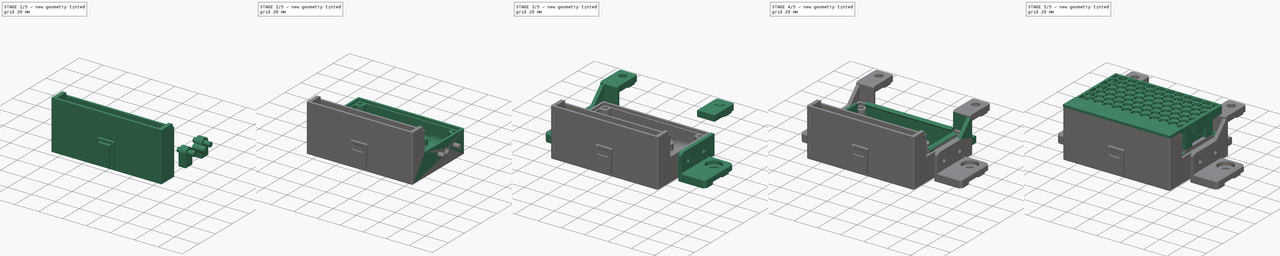
[diagram: build sequence overview — one tinted view per stage of 5, left to right]
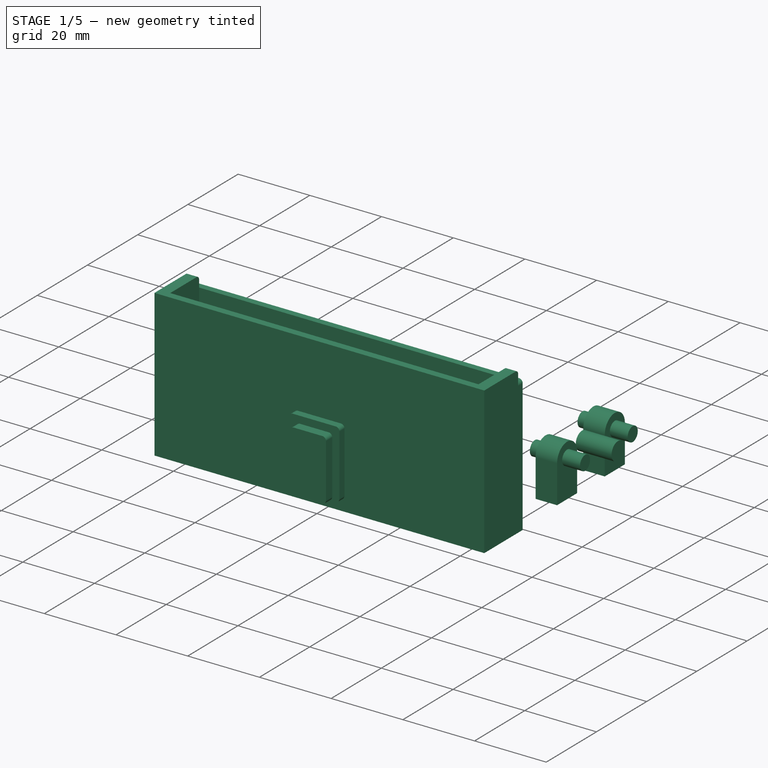
[diagram: stage 1 of 5 — iso view after this stage's code; geometry added in this stage tinted green]
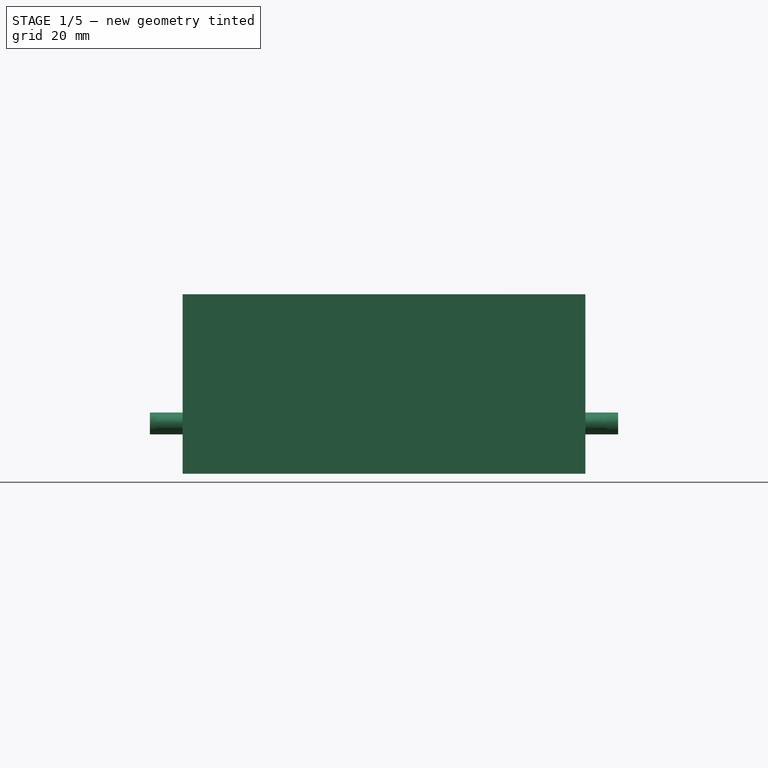
[diagram: stage 1 of 5 — front view after this stage's code; geometry added in this stage tinted green]
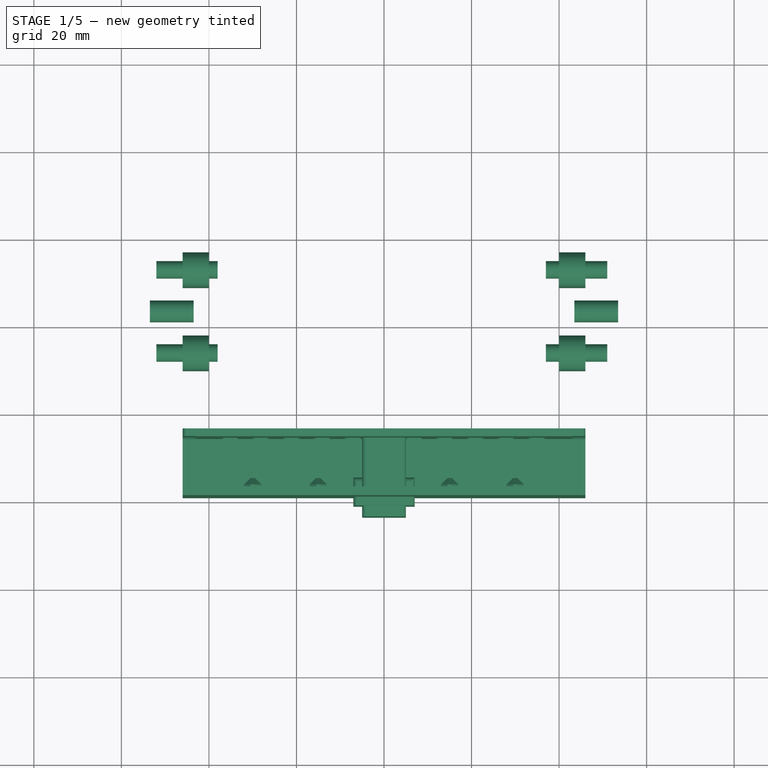
[diagram: stage 1 of 5 — top view after this stage's code; geometry added in this stage tinted green]
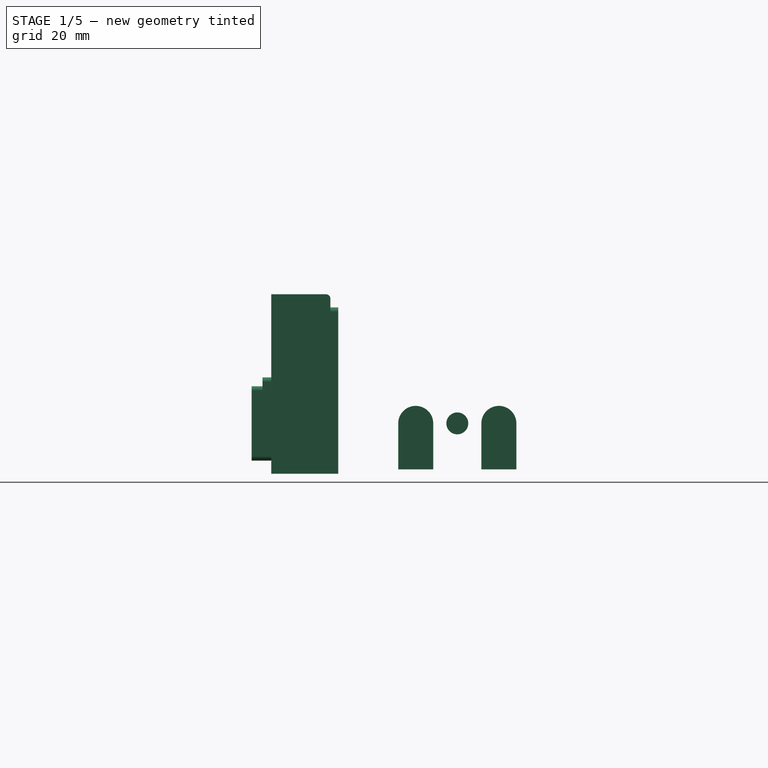
[diagram: stage 1 of 5 — right view after this stage's code; geometry added in this stage tinted green]
FCSTD DOCUMENT  (FreeCAD 0.19R24291 (Git))
Label: air-filter
License: Other
LicenseURL: GPL3
objects: Part::Box×64, Part::Feature×55, Part::Cylinder×40, Part::MultiFuse×39, Part::Chamfer×22, Part::Cut×21, Part::Fillet×18, Part::Refine×4, Sketcher::SketchObject×3, PartDesign::Body×2, Part::Mirroring×2, PartDesign::AdditiveLoft×1, PartDesign::Pad×1, Part::MultiCommon×1
note: 275 computed .brp shape members not serialized (recipe doc carries the construction recipe); baked Part::Feature solids carry a one-line shape summary decoded from their .brp

FEATURE [Part::Box] Box026  label="Cube026"
  AttacherType = Attacher::AttachEngine3D
  Height = 38
  Length = 92
  Placement = pos=(-46,-25.5,0) rot=(0,0,1;0rad)
  Width = 1.8
FEATURE [Part::Feature] Fillet005001
  shape: bbox 4 x 10 x 15 mm, 10 faces (baked)
FEATURE [Part::Feature] Fillet005002
  Placement = pos=(-7,0,0) rot=(0,0,1;0rad)
  shape: bbox 4 x 10 x 15 mm, 10 faces (baked)
FEATURE [Part::Feature] Fillet005003
  Placement = pos=(-14,0,0) rot=(0,0,1;0rad)
  shape: bbox 4 x 10 x 15 mm, 10 faces (baked)
FEATURE [Part::Feature] Fillet005004
  Placement = pos=(-21,0,0) rot=(0,0,1;0rad)
  shape: bbox 4 x 10 x 15 mm, 10 faces (baked)
FEATURE [Part::Feature] Fillet005005
  Placement = pos=(-28,0,0) rot=(0,0,1;0rad)
  shape: bbox 4 x 10 x 15 mm, 10 faces (baked)
FEATURE [Part::Feature] Fillet005006
  Placement = pos=(-35,0,0) rot=(0,0,1;0rad)
  shape: bbox 4 x 10 x 15 mm, 10 faces (baked)
FEATURE [Part::Feature] Fillet005007
  Placement = pos=(7,0,0) rot=(0,0,1;0rad)
  shape: bbox 4 x 10 x 15 mm, 10 faces (baked)
FEATURE [Part::Feature] Fillet005008
  Placement = pos=(14,0,0) rot=(0,0,1;0rad)
  shape: bbox 4 x 10 x 15 mm, 10 faces (baked)
FEATURE [Part::Feature] Fillet005009
  Placement = pos=(21,0,0) rot=(0,0,1;0rad)
  shape: bbox 4 x 10 x 15 mm, 10 faces (baked)
FEATURE [Part::Feature] Fillet005010
  Placement = pos=(28,0,0) rot=(0,0,1;0rad)
  shape: bbox 4 x 10 x 15 mm, 10 faces (baked)
FEATURE [Part::Feature] Fillet005011
  Placement = pos=(35,0,0) rot=(0,0,1;0rad)
  shape: bbox 4 x 10 x 15 mm, 10 faces (baked)
FEATURE [Part::MultiFuse] Fusion001019
  Placement = pos=(-1.5,0,0) rot=(0,0,1;0rad)
  Shapes = -> [Fillet005011,Fillet005010,Fillet005009,Fillet005007,Fillet005008,Fillet005006,Fillet005005,Fillet005004,Fillet005003,Fillet005002,Fillet005001]
FEATURE [Part::Box] Box027  label="Cube027"
  AttacherType = Attacher::AttachEngine3D
  Height = 41
  Length = 3
  Placement = pos=(-46,-39,0) rot=(0,0,1;0rad)
  Width = 13.5
FEATURE [Part::Box] Box028  label="Cube028"
  AttacherType = Attacher::AttachEngine3D
  Height = 3
  Length = 92
  Placement = pos=(-46,-39,0) rot=(0,0,1;0rad)
  Width = 14
FEATURE [Part::Cut] Cut007
  Base = -> Box026
  Tool = -> Fusion001019
FEATURE [Part::Box] Box029  label="Cube029"
  AttacherType = Attacher::AttachEngine3D
  Height = 41
  Length = 3
  Placement = pos=(43,-39,0) rot=(0,0,1;0rad)
  Width = 13.5
FEATURE [Part::Box] Box030  label="Cube030"
  AttacherType = Attacher::AttachEngine3D
  Height = 41
  Length = 92
  Placement = pos=(-46,-39,0) rot=(0,0,1;0rad)
  Width = 2
FEATURE [Part::MultiFuse] Fusion001020
  Shapes = -> [Box027,Box030,Box029]
FEATURE [Part::Fillet] Fillet005012
  Base = -> Fusion001020
  Edges = 2 edges r=1: [Edge18,Edge40]
FEATURE [Part::Fillet] Fillet005013
  Base = -> Cut007
  Edges = 2 edges r=1: [Edge2,Edge97]
FEATURE [Part::MultiFuse] Fusion001021004009015005
  Shapes = -> [Chamfer010004,Chamfer010001,Chamfer010002,Chamfer010003]
FEATURE [Part::Box] Box049  label="Cube047"
  AttacherType = Attacher::AttachEngine3D
  Height = 17
  Length = 10
  Placement = pos=(-5,-43.5,3) rot=(0,0,1;0rad)
  Width = 18
FEATURE [Part::Fillet] Fillet005015018
  Base = -> Box049
  Edges = 4 edges r=1: [Edge2,Edge4,Edge6,Edge8]
FEATURE [Part::Box] Box050  label="Cube048"
  AttacherType = Attacher::AttachEngine3D
  Height = 9.7
  Length = 14
  Placement = pos=(-7,-48,0) rot=(0,0,1;0rad)
  Width = 2
FEATURE [Part::Box] Box051  label="Cube049"
  AttacherType = Attacher::AttachEngine3D
  Height = 19
  Length = 14
  Placement = pos=(-7,-52.2,0) rot=(0,0,1;0rad)
  Width = 2
FEATURE [Part::Cylinder] Cylinder020
  Angle = 360
  AttacherType = Attacher::AttachEngine3D
  Height = 5
  Placement = pos=(0,-46.9,5) rot=(1,0,0;1.5708rad)
  Radius = 4.7
FEATURE [Part::Box] Box052  label="Cube050"
  AttacherType = Attacher::AttachEngine3D
  Height = 1.5
  Length = 12
  Placement = pos=(-6,-48,0) rot=(0,0,1;0rad)
  Width = 10.5
FEATURE [Part::Fillet] Fillet005015019
  Base = -> Box052
  Edges = 2 edges r=1: [Edge3,Edge7]
FEATURE [Part::Fillet] Fillet005015021
  Base = -> Box051
  Edges = 4 edges r=1: [Edge2,Edge4,Edge6,Edge8]
  Placement = pos=(0,-0.3,0) rot=(0,0,1;0rad)
FEATURE [Part::Fillet] Fillet005015022
  Base = -> Box050
  Edges = 5 edges r=1: [Edge2,Edge4,Edge6,Edge8,Edge12]
FEATURE [Part::Box] Box053  label="Cube051"
  AttacherType = Attacher::AttachEngine3D
  Height = 5
  Length = 10
  Placement = pos=(-5,-62,12) rot=(0,0,1;0rad)
  Width = 10
FEATURE [Part::Fillet] Fillet005015023
  Base = -> Box053
  Edges = 4 edges r=1: [Edge2,Edge4,Edge6,Edge8]
FEATURE [Part::Chamfer] Chamfer010009
  Base = -> Fillet005015023
  Edges = 8 edges r=0.5: [Edge3,Edge13,Edge15,Edge16,Edge17,Edge18,Edge19,Edge20]
FEATURE [Part::Cylinder] Cylinder024
  Angle = 360
  AttacherType = Attacher::AttachEngine3D
  Height = 14
  Placement = pos=(-52,13,11.5) rot=(0,1,0;1.5708rad)
  Radius = 2
FEATURE [Part::Cylinder] Cylinder025
  Angle = 360
  AttacherType = Attacher::AttachEngine3D
  Height = 14
  Placement = pos=(-52,-6,11.5) rot=(0,1,0;1.5708rad)
  Radius = 2
FEATURE [Part::Cylinder] Cylinder026
  Angle = 360
  AttacherType = Attacher::AttachEngine3D
  Height = 14
  Placement = pos=(37,-6,11.5) rot=(0,1,0;1.5708rad)
  Radius = 2
FEATURE [Part::Cylinder] Cylinder027
  Angle = 360
  AttacherType = Attacher::AttachEngine3D
  Height = 14
  Placement = pos=(37,13,11.5) rot=(0,1,0;1.5708rad)
  Radius = 2
FEATURE [Part::Cylinder] Cylinder030
  Angle = 360
  AttacherType = Attacher::AttachEngine3D
  Height = 10
  Placement = pos=(-53.5,3.5,11.5) rot=(0,1,0;1.5708rad)
  Radius = 2.5
FEATURE [Part::Cylinder] Cylinder038
  Angle = 360
  AttacherType = Attacher::AttachEngine3D
  Height = 10
  Placement = pos=(43.5,3.5,11.5) rot=(0,1,0;1.5708rad)
  Radius = 2.5
FEATURE [Part::MultiFuse] Fusion001021004009015013006
  Shapes = -> [Cylinder030,Cylinder038]
FEATURE [Part::Cylinder] Cylinder039
  Angle = 360
  AttacherType = Attacher::AttachEngine3D
  Height = 6
  Placement = pos=(-46,13,11.5) rot=(0,1,0;1.5708rad)
  Radius = 4
FEATURE [Part::Cylinder] Cylinder040
  Angle = 360
  AttacherType = Attacher::AttachEngine3D
  Height = 6
  Placement = pos=(-46,-6,11.5) rot=(0,1,0;1.5708rad)
  Radius = 4
FEATURE [Part::Cylinder] Cylinder041
  Angle = 360
  AttacherType = Attacher::AttachEngine3D
  Height = 6
  Placement = pos=(40,-6,11.5) rot=(0,1,0;1.5708rad)
  Radius = 4
FEATURE [Part::Cylinder] Cylinder042
  Angle = 360
  AttacherType = Attacher::AttachEngine3D
  Height = 6
  Placement = pos=(40,13,11.5) rot=(0,1,0;1.5708rad)
  Radius = 4
FEATURE [Part::Box] Box064  label="Cube062"
  AttacherType = Attacher::AttachEngine3D
  Height = 10.5
  Length = 6
  Placement = pos=(-46,-10,1) rot=(0,0,1;0rad)
  Width = 8
FEATURE [Part::Box] Box065  label="Cube063"
  AttacherType = Attacher::AttachEngine3D
  Height = 10.5
  Length = 6
  Placement = pos=(-46,9,1) rot=(0,0,1;0rad)
  Width = 8
FEATURE [Part::Box] Box066  label="Cube064"
  AttacherType = Attacher::AttachEngine3D
  Height = 10.5
  Length = 6
  Placement = pos=(40,9,1) rot=(0,0,1;0rad)
  Width = 8
FEATURE [Part::Box] Box067  label="Cube065"
  AttacherType = Attacher::AttachEngine3D
  Height = 10.5
  Length = 6
  Placement = pos=(40,-10,1) rot=(0,0,1;0rad)
  Width = 8
FEATURE [Part::MultiFuse] Fusion001021004009015013007
  Shapes = -> [Box067,Box066,Box065,Box064,Cylinder042,Cylinder041,Cylinder040,Cylinder039]
FEATURE [Part::MultiFuse] Fusion001021004009015013009
  Shapes = -> [Cylinder027,Cylinder024,Cylinder025,Cylinder026]
FEATURE [Part::Refine] Cut019003010005001
  Source = -> Cut019003010005
FEATURE [Part::Feature] Cut019003010005001001
  shape: bbox 92 x 64.5 x 41 mm, 242 faces (baked)
FEATURE [Part::MultiFuse] Fusion001021004009015013010
  Shapes = -> [Fillet005015019,Fillet005015022,Cylinder020,Fillet005015021]
FEATURE [Part::Cut] Cut019003010005001002
  Base = -> Fusion001021004009015013010
  Placement = pos=(0,11.5,3) rot=(0,0,1;0rad)
  Tool = -> Chamfer010009
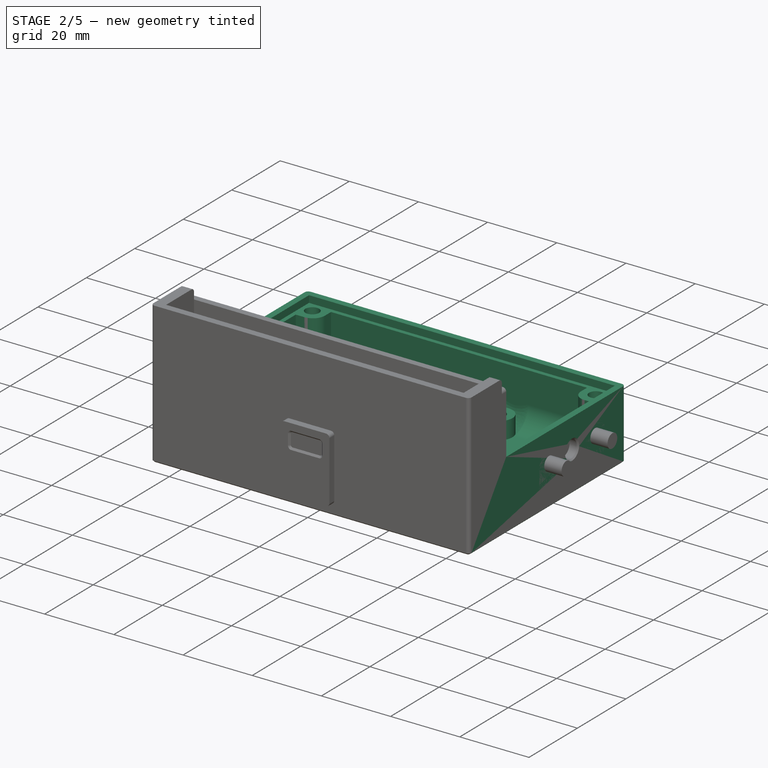
[diagram: stage 2 of 5 — iso view after this stage's code; geometry added in this stage tinted green]
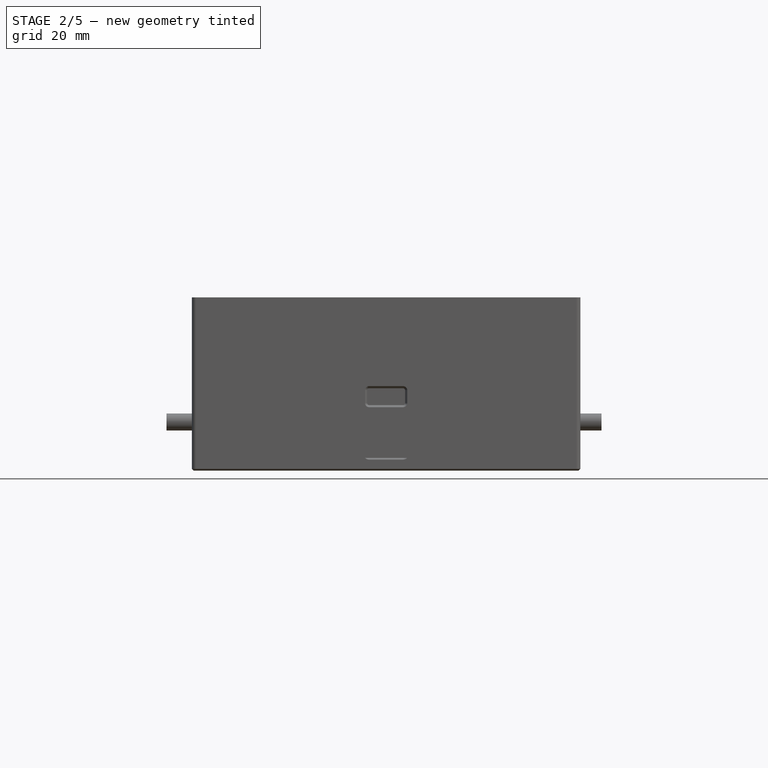
[diagram: stage 2 of 5 — front view after this stage's code; geometry added in this stage tinted green]
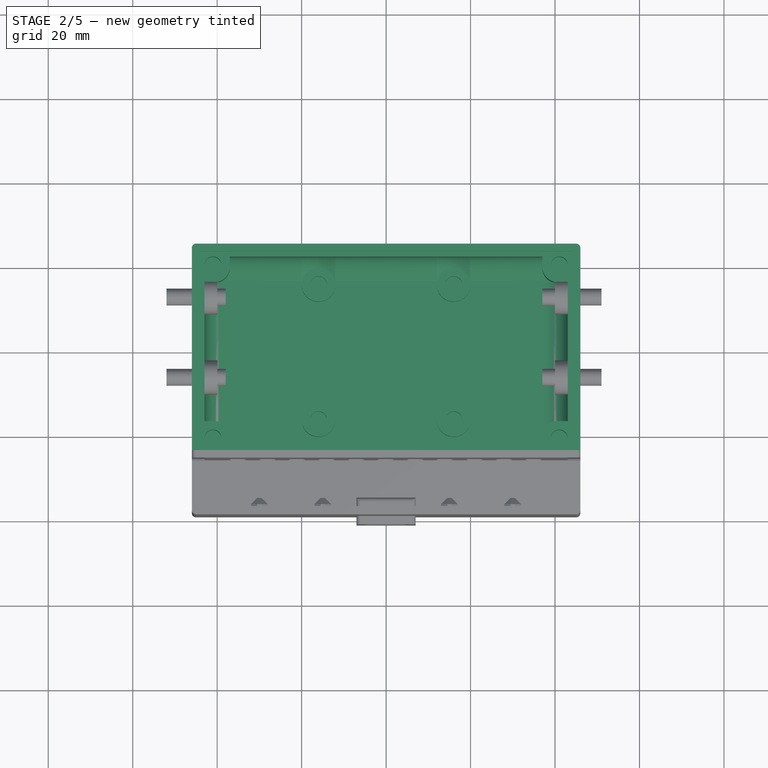
[diagram: stage 2 of 5 — top view after this stage's code; geometry added in this stage tinted green]
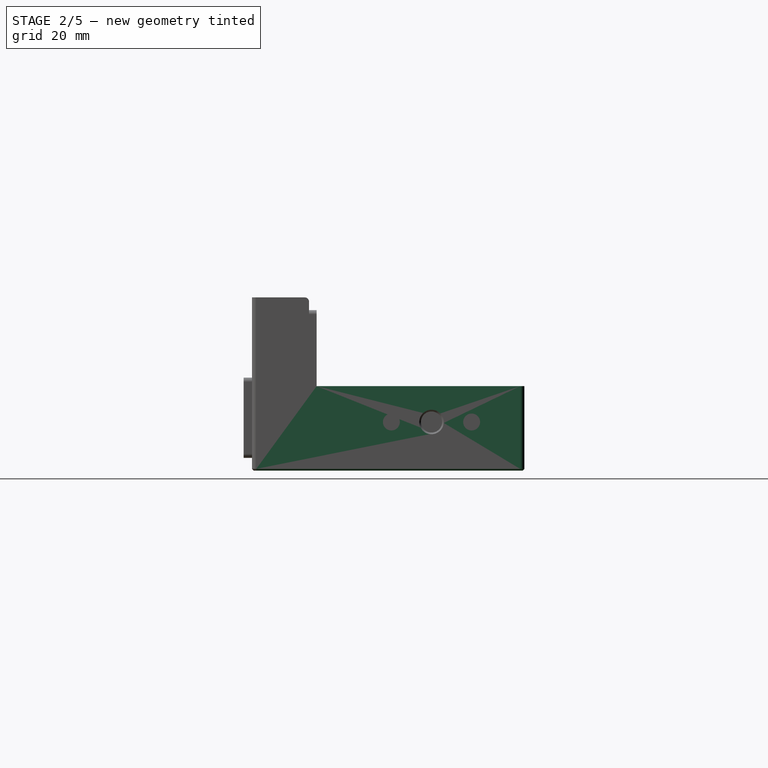
[diagram: stage 2 of 5 — right view after this stage's code; geometry added in this stage tinted green]
FEATURE [Part::Box] Box014  label="Cube014"
  AttacherType = Attacher::AttachEngine3D
  Height = 3
  Length = 92
  Placement = pos=(-46,-25.5,0) rot=(0,0,1;0rad)
  Width = 51
FEATURE [Part::Cylinder] Cylinder008
  Angle = 360
  AttacherType = Attacher::AttachEngine3D
  Height = 8
  Placement = pos=(-16,16,0) rot=(0,0,1;0rad)
  Radius = 4
FEATURE [Part::Cylinder] Cylinder009
  Angle = 360
  AttacherType = Attacher::AttachEngine3D
  Height = 8
  Placement = pos=(16,16,0) rot=(0,0,1;0rad)
  Radius = 4
FEATURE [Part::Cylinder] Cylinder010
  Angle = 360
  AttacherType = Attacher::AttachEngine3D
  Height = 8
  Placement = pos=(-16,-16,0) rot=(0,0,1;0rad)
  Radius = 4
FEATURE [Part::Cylinder] Cylinder011
  Angle = 360
  AttacherType = Attacher::AttachEngine3D
  Height = 8
  Placement = pos=(16,-16,0) rot=(0,0,1;0rad)
  Radius = 4
FEATURE [Part::Cylinder] Cylinder012
  Angle = 360
  AttacherType = Attacher::AttachEngine3D
  Height = 8
  Placement = pos=(16,-16,0) rot=(0,0,1;0rad)
  Radius = 2
FEATURE [Part::Cylinder] Cylinder013
  Angle = 360
  AttacherType = Attacher::AttachEngine3D
  Height = 8
  Placement = pos=(-16,-16,0) rot=(0,0,1;0rad)
  Radius = 2
FEATURE [Part::Cylinder] Cylinder014
  Angle = 360
  AttacherType = Attacher::AttachEngine3D
  Height = 8
  Placement = pos=(16,16,0) rot=(0,0,1;0rad)
  Radius = 2
FEATURE [Part::Cylinder] Cylinder015
  Angle = 360
  AttacherType = Attacher::AttachEngine3D
  Height = 8
  Placement = pos=(-16,16,0) rot=(0,0,1;0rad)
  Radius = 2
FEATURE [Part::MultiFuse] Fusion001011
  Shapes = -> [Cylinder015,Cylinder012,Cylinder013,Cylinder014]
FEATURE [Part::MultiFuse] Fusion001012
  Shapes = -> [Cylinder011,Cylinder008,Cylinder009,Cylinder010]
FEATURE [Part::Cut] Cut005
  Base = -> Fusion001012
  Tool = -> Fusion001011
FEATURE [Part::MultiFuse] Fusion001013
  Shapes = -> [Cut005,Box014]
FEATURE [Part::Box] Box015  label="Cube015"
  AttacherType = Attacher::AttachEngine3D
  Height = 18
  Length = 3
  Placement = pos=(-46,-25.5,0) rot=(0,0,1;0rad)
  Width = 51
FEATURE [Part::Box] Box016  label="Cube016"
  AttacherType = Attacher::AttachEngine3D
  Height = 18
  Length = 3
  Placement = pos=(43,-25.5,0) rot=(0,0,1;0rad)
  Width = 51
FEATURE [Part::Box] Box017  label="Cube017"
  AttacherType = Attacher::AttachEngine3D
  Height = 18
  Length = 92
  Placement = pos=(-46,22.5,0) rot=(0,0,1;0rad)
  Width = 3
FEATURE [Part::Box] Box018  label="Cube018"
  AttacherType = Attacher::AttachEngine3D
  Height = 20
  Length = 1.8
  Placement = pos=(-46,-25.5,0) rot=(0,0,1;0rad)
  Width = 51
FEATURE [Part::Box] Box019  label="Cube019"
  AttacherType = Attacher::AttachEngine3D
  Height = 20
  Length = 1.8
  Placement = pos=(44.2,-25.5,0) rot=(0,0,1;0rad)
  Width = 51
FEATURE [Part::Box] Box020  label="Cube020"
  AttacherType = Attacher::AttachEngine3D
  Height = 20
  Length = 92
  Placement = pos=(-46,23.7,0) rot=(0,0,1;0rad)
  Width = 1.8
FEATURE [Part::MultiFuse] Fusion001014
  Shapes = -> [Box020,Box019,Box018,Box017,Box016,Box015,Fusion001013]
FEATURE [Part::Box] Box021  label="Cube021"
  AttacherType = Attacher::AttachEngine3D
  Height = 18
  Length = 9
  Placement = pos=(-46,16.5,0) rot=(0,0,1;0rad)
  Width = 9
FEATURE [Part::Box] Box022  label="Cube022"
  AttacherType = Attacher::AttachEngine3D
  Height = 18
  Length = 9
  Placement = pos=(37,16.5,0) rot=(0,0,1;0rad)
  Width = 9
FEATURE [Part::Box] Box023  label="Cube023"
  AttacherType = Attacher::AttachEngine3D
  Height = 18
  Length = 9
  Placement = pos=(-46,-25.5,0) rot=(0,0,1;0rad)
  Width = 9
FEATURE [Part::Box] Box024  label="Cube024"
  AttacherType = Attacher::AttachEngine3D
  Height = 18
  Length = 9
  Placement = pos=(37,-25.5,0) rot=(0,0,1;0rad)
  Width = 9
FEATURE [Part::MultiFuse] Fusion001015
  Shapes = -> [Box024,Box023,Box022,Box021]
FEATURE [Part::Cylinder] Cylinder016
  Angle = 360
  AttacherType = Attacher::AttachEngine3D
  Height = 10
  Placement = pos=(-41,-20.5,10) rot=(0,0,1;0rad)
  Radius = 2
FEATURE [Part::Cylinder] Cylinder017
  Angle = 360
  AttacherType = Attacher::AttachEngine3D
  Height = 10
  Placement = pos=(-41,20.5,10) rot=(0,0,1;0rad)
  Radius = 2
FEATURE [Part::Cylinder] Cylinder018
  Angle = 360
  AttacherType = Attacher::AttachEngine3D
  Height = 10
  Placement = pos=(41,20.5,10) rot=(0,0,1;0rad)
  Radius = 2
FEATURE [Part::Cylinder] Cylinder019
  Angle = 360
  AttacherType = Attacher::AttachEngine3D
  Height = 10
  Placement = pos=(41,-20.5,10) rot=(0,0,1;0rad)
  Radius = 2
FEATURE [Part::MultiFuse] Fusion001016
  Shapes = -> [Cylinder019,Cylinder018,Cylinder017,Cylinder016]
FEATURE [Part::Fillet] Fillet002
  Base = -> Fusion001015
  Edges = 4 edges r=3.5: [Edge3,Edge19,Edge25,Edge41]
FEATURE [Part::Fillet] Fillet003
  Base = -> Fusion001014
  Edges = 3 edges r=6: [Edge110,Edge111,Edge112]
FEATURE [Part::MultiFuse] Fusion001017
  Shapes = -> [Fillet003,Fillet002]
FEATURE [Part::Cut] Cut006
  Base = -> Fusion001017
  Tool = -> Fusion001016
FEATURE [Part::MultiFuse] Fusion001021
  Shapes = -> [Fillet005013,Fillet005012,Box028,Cut006]
FEATURE [Part::Refine] Fusion001021001
  Source = -> Fusion001021
FEATURE [Part::Fillet] Fillet005014
  Base = -> Fusion001021001
  Edges = 4 edges r=1: [Edge293,Edge296,Edge329,Edge417]
FEATURE [Part::Chamfer] Chamfer003
  Base = -> Fillet005014
  Edges = 8 edges r=0.4: [Edge8,Edge19,Edge23,Edge24,Edge25,Edge26,Edge27,Edge28]
FEATURE [Part::MultiFuse] Fusion001021004009015006
  Shapes = -> [Fusion001021004009015005,Chamfer003]
FEATURE [Part::Cut] Cut017
  Base = -> Fusion001021004009015006
  Tool = -> Fillet005015018
FEATURE [Part::Chamfer] Chamfer010008
  Base = -> Cut017
  Edges = 8 edges r=0.4: [Edge63,Edge64,Edge65,Edge66,Edge67,Edge68,Edge69,Edge70]
FEATURE [Part::Cut] Cut019003010004
  Base = -> Chamfer010008
  Tool = -> Fusion001021004009015013006
FEATURE [Part::Chamfer] Chamfer010015009
  Base = -> Cut019003010004
  Edges = 2 edges r=0.4: [Edge68,Edge78]
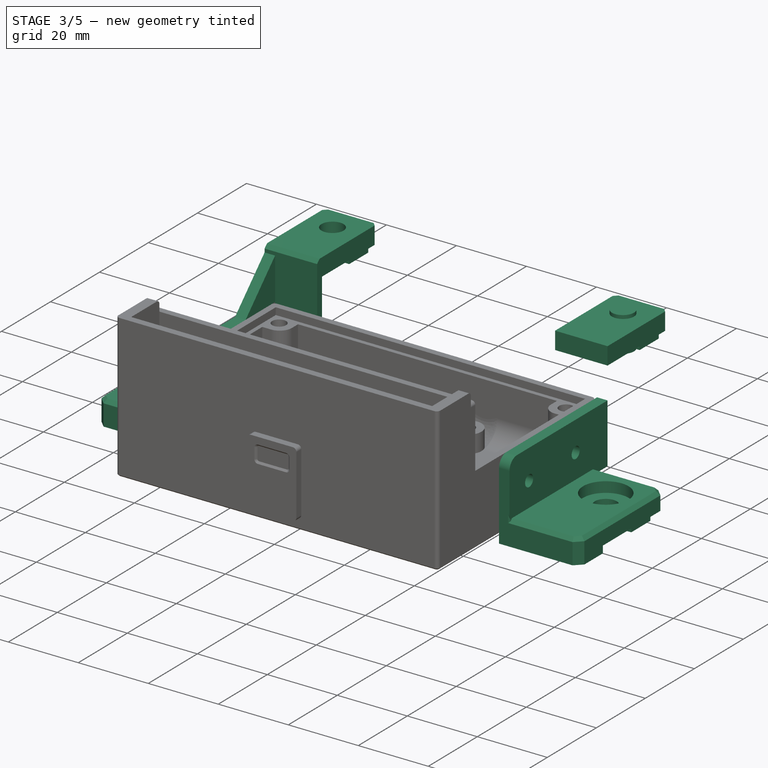
[diagram: stage 3 of 5 — iso view after this stage's code; geometry added in this stage tinted green]
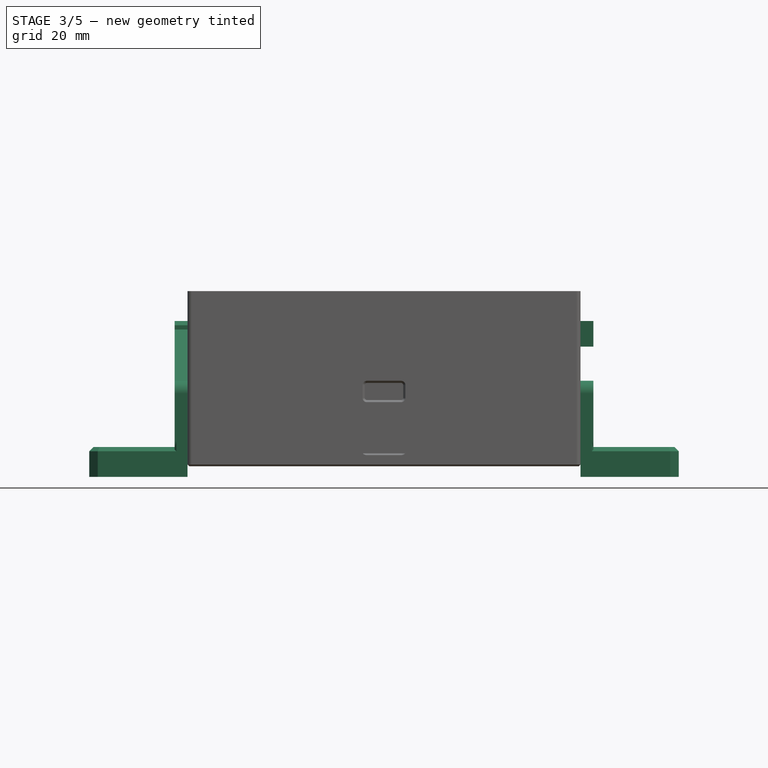
[diagram: stage 3 of 5 — front view after this stage's code; geometry added in this stage tinted green]
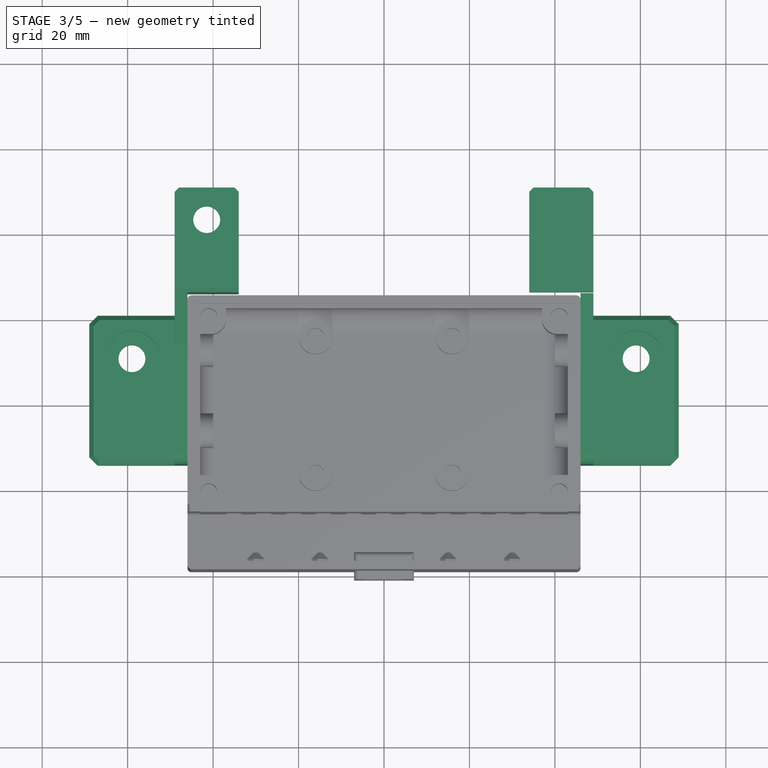
[diagram: stage 3 of 5 — top view after this stage's code; geometry added in this stage tinted green]
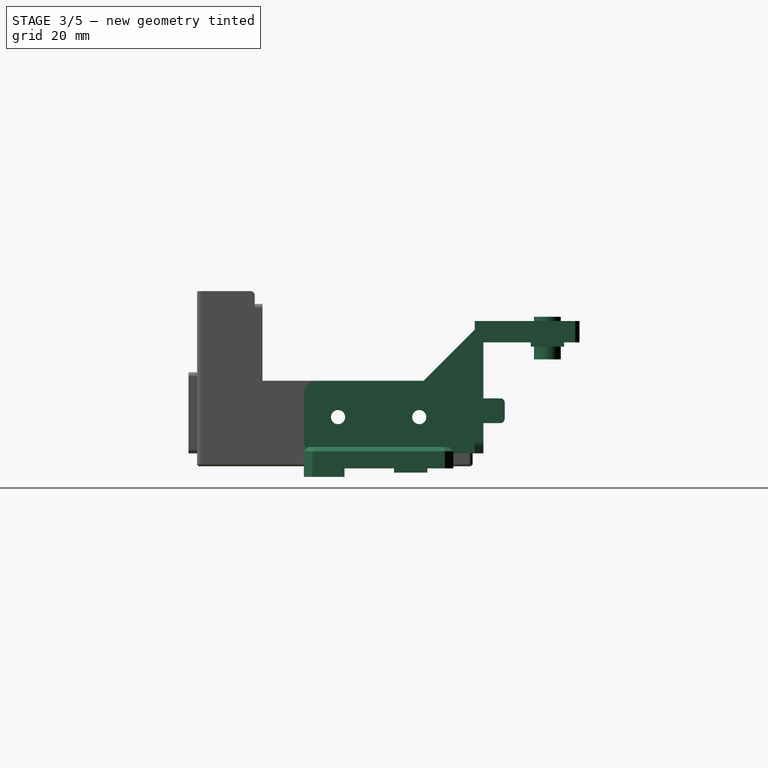
[diagram: stage 3 of 5 — right view after this stage's code; geometry added in this stage tinted green]
FEATURE [Part::Box] Box054  label="Cube052"
  AttacherType = Attacher::AttachEngine3D
  Height = 5
  Length = 15
  Placement = pos=(34,26,29) rot=(0,0,1;0rad)
  Width = 24.5
FEATURE [Part::Box] Box056  label="Cube054"
  AttacherType = Attacher::AttachEngine3D
  Height = 17
  Length = 3
  Placement = pos=(46,-14,3) rot=(0,0,1;0rad)
  Width = 40
FEATURE [Part::Fillet] Fillet005015024
  Base = -> Box056
  Edges = 2 edges r=3: [Edge9,Edge10]
FEATURE [Part::Box] Box057  label="Cube055"
  AttacherType = Attacher::AttachEngine3D
  Height = 2
  Length = 15
  Placement = pos=(34,39.1,28) rot=(0,0,1;0rad)
  Width = 7.8
FEATURE [Part::Cylinder] Cylinder021
  Angle = 360
  AttacherType = Attacher::AttachEngine3D
  Height = 10
  Placement = pos=(41.5,43,25) rot=(0,0,1;0rad)
  Radius = 3.15
FEATURE [Part::Cylinder] Cylinder022
  Angle = 360
  AttacherType = Attacher::AttachEngine3D
  Height = 14
  Placement = pos=(37,-6,11.5) rot=(0,1,0;1.5708rad)
  Radius = 1.65
FEATURE [Part::Cylinder] Cylinder023
  Angle = 360
  AttacherType = Attacher::AttachEngine3D
  Height = 14
  Placement = pos=(37,13,11.5) rot=(0,1,0;1.5708rad)
  Radius = 1.65
FEATURE [Part::Cylinder] Cylinder031
  Angle = 360
  AttacherType = Attacher::AttachEngine3D
  Height = 10
  Placement = pos=(-52,3.5,11.5) rot=(0,1,0;1.5708rad)
  Radius = 3
FEATURE [Part::MultiFuse] Fusion001021004009015011
  Shapes = -> [Cylinder022,Cylinder023]
FEATURE [Part::Chamfer] Chamfer010013
  Base = -> Box054
  Edges = 2 edges r=1: [Edge3,Edge7]
FEATURE [Part::MultiFuse] Fusion001021004009015012
  Shapes = -> [Box057,Chamfer010013]
FEATURE [Part::Cut] Cut019003007
  Base = -> Fillet005015024
  Tool = -> Fusion001021004009015011
FEATURE [Part::Feature] Chamfer010015001  label="arm-right001"
  shape: bbox 15 x 64.5 x 31 mm, 31 faces (baked)
FEATURE [Part::Mirroring] Part__Mirroring  label="arm-right001 (Mirror #1)"
  Base = (0,0,0)
  Normal = (1,0,0)
  Source = -> Chamfer010015001
FEATURE [Part::Cut] Cut019003008
  Base = -> Part__Mirroring
  Tool = -> Cylinder031
FEATURE [Part::Chamfer] Chamfer010015002  label="top-mount-arm-left"
  Base = -> Cut019003008
  Edges = 1 edges r=1: [Edge31]
FEATURE [Part::Box] Box059  label="Cube057"
  AttacherType = Attacher::AttachEngine3D
  Height = 20.5
  Length = 3
  Placement = pos=(46,-14,-0.5) rot=(0,0,1;0rad)
  Width = 35
FEATURE [Part::Box] Box060  label="Cube058"
  AttacherType = Attacher::AttachEngine3D
  Height = 5
  Length = 23
  Placement = pos=(46,-14,-0.5) rot=(0,0,1;0rad)
  Width = 35
FEATURE [Part::Box] Box061  label="Cube059"
  AttacherType = Attacher::AttachEngine3D
  Height = 2
  Length = 23
  Placement = pos=(46,-14,-2.5) rot=(0,0,1;0rad)
  Width = 9.5
FEATURE [Part::Box] Box062  label="Cube060"
  AttacherType = Attacher::AttachEngine3D
  Height = 1
  Length = 23
  Placement = pos=(46,7.1,-1.5) rot=(0,0,1;0rad)
  Width = 7.8
FEATURE [Part::Chamfer] Chamfer010015003
  Base = -> Box060
  Edges = 1 edges r=2: [Edge5]
FEATURE [Part::Chamfer] Chamfer010015004
  Base = -> Box061
  Edges = 1 edges r=2: [Edge5]
FEATURE [Part::Chamfer] Chamfer010015005
  Base = -> Chamfer010015003
  Edges = 1 edges r=2: [Edge4]
FEATURE [Part::Fillet] Fillet005015029
  Base = -> Box059
  Edges = 2 edges r=3: [Edge10,Edge12]
FEATURE [Part::Cylinder] Cylinder032
  Angle = 360
  AttacherType = Attacher::AttachEngine3D
  Height = 10
  Placement = pos=(59,11,-1.5) rot=(0,0,1;0rad)
  Radius = 3.15
FEATURE [Part::Cylinder] Cylinder033
  Angle = 360
  AttacherType = Attacher::AttachEngine3D
  Height = 3
  Placement = pos=(59,11,1.5) rot=(0,0,1;0rad)
  Radius = 6.5
FEATURE [Part::MultiFuse] Fusion001021004009015013002
  Shapes = -> [Cylinder033,Cylinder032]
FEATURE [Part::Cylinder] Cylinder034
  Angle = 360
  AttacherType = Attacher::AttachEngine3D
  Height = 10
  Placement = pos=(42.5,3.5,11.5) rot=(0,1,0;1.5708rad)
  Radius = 2.5
FEATURE [Part::Cylinder] Cylinder036
  Angle = 360
  AttacherType = Attacher::AttachEngine3D
  Height = 14
  Placement = pos=(37,13,11.5) rot=(0,1,0;1.5708rad)
  Radius = 2
FEATURE [Part::Cylinder] Cylinder037
  Angle = 360
  AttacherType = Attacher::AttachEngine3D
  Height = 14
  Placement = pos=(37,-6,11.5) rot=(0,1,0;1.5708rad)
  Radius = 2
FEATURE [Part::MultiFuse] Fusion001021004009015013004
  Shapes = -> [Cylinder037,Cylinder034,Cylinder036]
FEATURE [Part::Box] Box063  label="Cube061"
  AttacherType = Attacher::AttachEngine3D
  Height = 10
  Length = 26
  Placement = pos=(44.5,-14.5,-12) rot=(0,0,1;0rad)
  Width = 12
FEATURE [Part::Chamfer] Chamfer010015006
  Base = -> Chamfer010015005
  Edges = 5 edges r=1: [Edge1,Edge5,Edge6,Edge8,Edge9]
FEATURE [Part::Chamfer] Chamfer010015007
  Base = -> Fillet005015029
  Edges = 5 edges r=0.4: [Edge7,Edge11,Edge14,Edge16,Edge18]
FEATURE [Part::MultiFuse] Fusion001021004009015013005
  Shapes = -> [Chamfer010015006,Chamfer010015007,Chamfer010015004,Box062]
FEATURE [Part::Cut] Cut019003009
  Base = -> Fusion001021004009015013005
  Tool = -> Fusion001021004009015013004
FEATURE [Part::Chamfer] Chamfer010015008
  Base = -> Cut019003009
  Edges = 1 edges r=1: [Edge75]
FEATURE [Part::Cut] Cut019003010  label="side-mount"
  Base = -> Chamfer010015008
  Tool = -> Fusion001021004009015013002
FEATURE [Part::Feature] Cut019003010001  label="side-mount001"
  shape: bbox 23 x 35 x 22.5 mm, 48 faces (baked)
FEATURE [Part::Feature] Cut019003010002  label="side-mount002"
  shape: bbox 23 x 35 x 22.5 mm, 48 faces (baked)
FEATURE [Part::Cut] Cut019003010003  label="side-mount-m0p5"
  Base = -> Cut019003010001
  Tool = -> Box063
FEATURE [Part::Mirroring] Part__Mirroring001  label="side-mount002 (Mirror #2)"
  Base = (0,0,0)
  Normal = (1,0,0)
  Source = -> Cut019003010002
FEATURE [Part::MultiFuse] Fusion001021004009015013008
  Shapes = -> [Chamfer010015009,Fusion001021004009015013007]
FEATURE [Part::Cut] Cut019003010005
  Base = -> Fusion001021004009015013008
  Tool = -> Fusion001021004009015013009
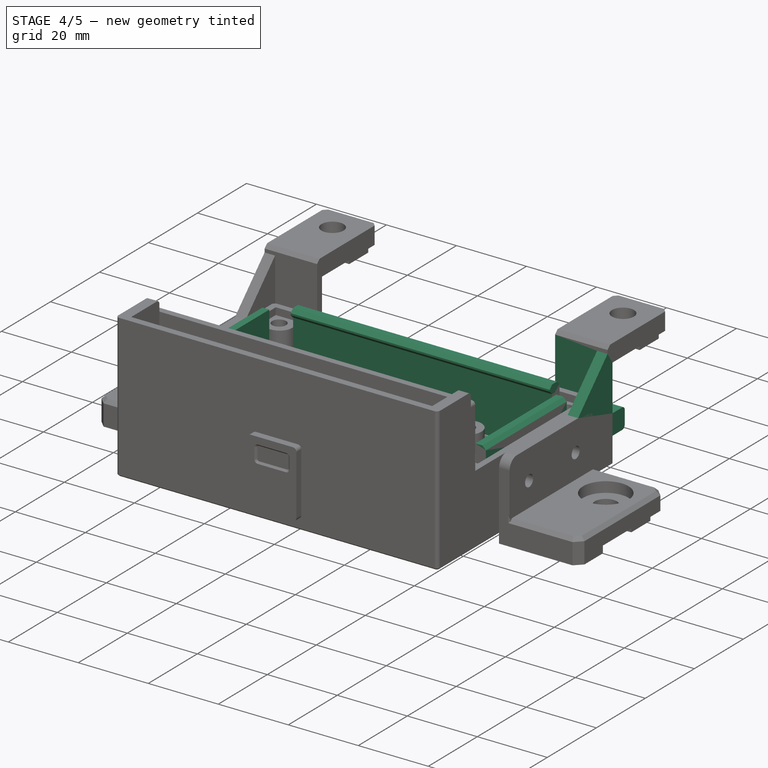
[diagram: stage 4 of 5 — iso view after this stage's code; geometry added in this stage tinted green]
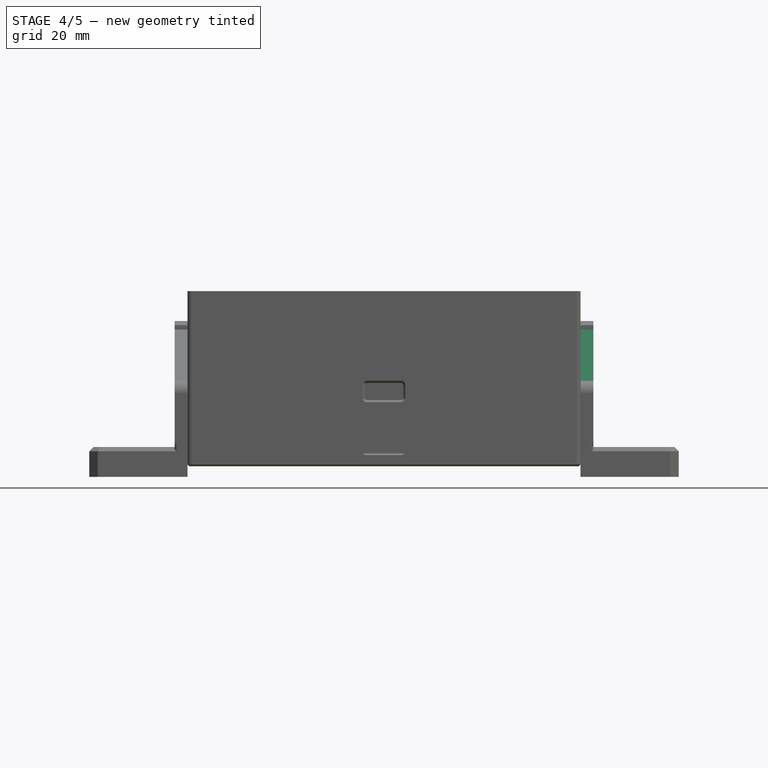
[diagram: stage 4 of 5 — front view after this stage's code; geometry added in this stage tinted green]
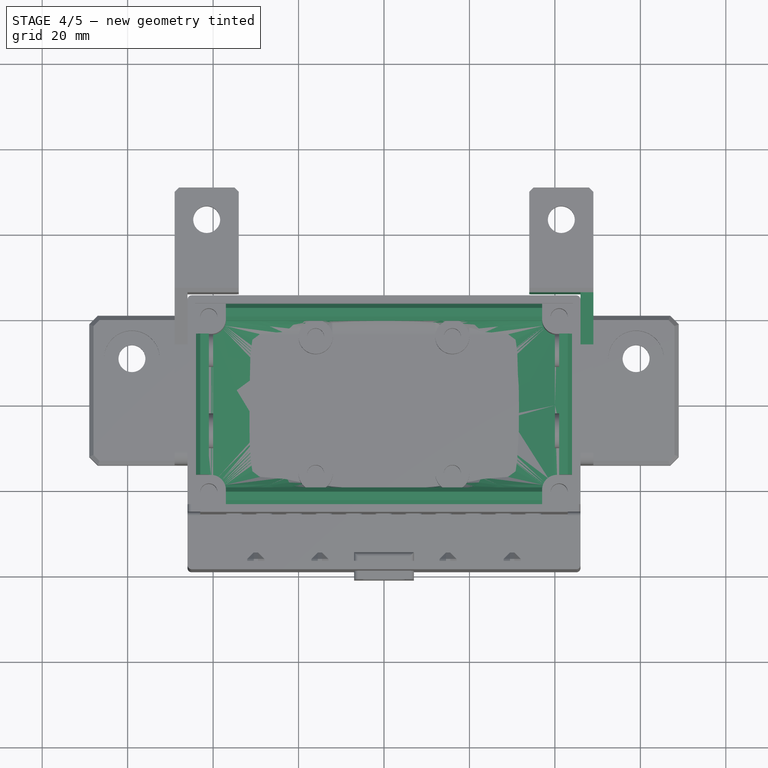
[diagram: stage 4 of 5 — top view after this stage's code; geometry added in this stage tinted green]
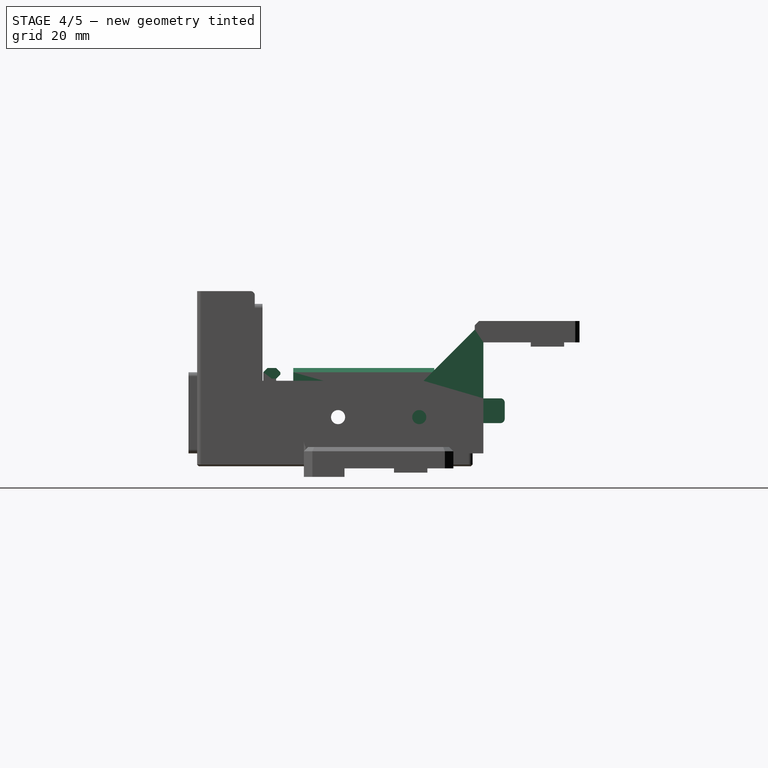
[diagram: stage 4 of 5 — right view after this stage's code; geometry added in this stage tinted green]
FEATURE [Sketcher::SketchObject] Sketch
  AttachmentOffset = pos=(0,0,5) rot=(0,0,1;0rad)
  FullyConstrained = true
  MapMode = 5
  Placement = pos=(0,0,5) rot=(0,0,1;0rad)
  Support = -> [XY_Plane]
  sketch-geometry (4):
    g0: LineSegment StartX=-40 StartY=20 StartZ=0 EndX=40 EndY=20 EndZ=0
    g1: LineSegment StartX=40 StartY=20 StartZ=0 EndX=40 EndY=-20 EndZ=0
    g2: LineSegment StartX=40 StartY=-20 StartZ=0 EndX=-40 EndY=-20 EndZ=0
    g3: LineSegment StartX=-40 StartY=-20 StartZ=0 EndX=-40 EndY=20 EndZ=0
  constraints (12):
    c: Coincident(g0,g1)
    c: Coincident(g1,g2)
    c: Coincident(g2,g3)
    c: Coincident(g3,g0)
    c: Horizontal(g0)
    c: Horizontal(g2)
    c: Vertical(g1)
    c: Vertical(g3)
    c: DistanceX(g0,g0) = 80
    c: DistanceX(g0,g-1) = 40
    c: DistanceY(g3,g3) = 40
    c: DistanceY(g-1,g0) = 20
FEATURE [Sketcher::SketchObject] Sketch001
  FullyConstrained = true
  MapMode = 5
  Support = -> [XY_Plane]
  sketch-geometry (1):
    g0: Circle CenterX=0 CenterY=0 CenterZ=0 NormalX=0 NormalY=0 NormalZ=1 AngleXU=0 Radius=19
  constraints (2):
    c: Coincident(g0,g-1)
    c: Radius(g0) = 19
FEATURE [PartDesign::AdditiveLoft] AdditiveLoft
  Closed = false
  Profile = -> Sketch
  Ruled = true
  Sections = -> [Sketch001]
FEATURE [PartDesign::Body] Body  label="duct"
  Group = -> [Sketch,Sketch001,AdditiveLoft]
  Origin = -> Origin
  Tip = -> AdditiveLoft
FEATURE [Sketcher::SketchObject] Sketch002
  FullyConstrained = true
  MapMode = 5
  Support = -> [XY_Plane001]
  sketch-geometry (8):
    g0: LineSegment StartX=-44 StartY=23.5 StartZ=0 EndX=44 EndY=23.5 EndZ=0
    g1: LineSegment StartX=44 StartY=23.5 StartZ=0 EndX=44 EndY=-23.5 EndZ=0
    g2: LineSegment StartX=44 StartY=-23.5 StartZ=0 EndX=-44 EndY=-23.5 EndZ=0
    g3: LineSegment StartX=-44 StartY=-23.5 StartZ=0 EndX=-44 EndY=23.5 EndZ=0
    g4: Circle CenterX=-41 CenterY=20.5 CenterZ=0 NormalX=0 NormalY=0 NormalZ=1 AngleXU=0 Radius=1.65
    g5: Circle CenterX=-41 CenterY=-20.5 CenterZ=0 NormalX=0 NormalY=0 NormalZ=1 AngleXU=0 Radius=1.65
    g6: Circle CenterX=41 CenterY=20.5 CenterZ=0 NormalX=0 NormalY=0 NormalZ=1 AngleXU=0 Radius=1.65
    g7: Circle CenterX=41 CenterY=-20.5 CenterZ=0 NormalX=0 NormalY=0 NormalZ=1 AngleXU=0 Radius=1.65
  constraints (24):
    c: Coincident(g0,g1)
    c: Coincident(g1,g2)
    c: Coincident(g2,g3)
    c: Coincident(g3,g0)
    c: Horizontal(g0)
    c: Horizontal(g2)
    c: Vertical(g1)
    c: Vertical(g3)
    c: DistanceX(g0,g0) = 88
    c: DistanceX(g0,g-1) = 44
    c: DistanceY(g3,g3) = 47
    c: DistanceY(g-1,g0) = 23.5
    c: Radius(g4) = 1.65
    c: Radius(g5) = 1.65
    c: Radius(g6) = 1.65
    c: Radius(g7) = 1.65
    c: DistanceX(g4,g-1) = 41
    c: DistanceX(g-1,g6) = 41
    c: DistanceX(g5,g-1) = 41
    c: DistanceX(g-1,g7) = 41
    c: DistanceY(g-1,g4) = 20.5
    c: DistanceY(g5,g-1) = 20.5
    c: DistanceY(g-1,g6) = 20.5
    c: DistanceY(g7,g-1) = 20.5
FEATURE [Part::Box] Box  label="Cube"
  AttacherType = Attacher::AttachEngine3D
  Height = 3
  Length = 7
  Placement = pos=(-44,-23.5,0) rot=(0,0,1;0rad)
  Width = 7
FEATURE [Part::Box] Box001  label="Cube001"
  AttacherType = Attacher::AttachEngine3D
  Height = 3
  Length = 7
  Placement = pos=(-44,16.5,0) rot=(0,0,1;0rad)
  Width = 7
FEATURE [Part::Box] Box002  label="Cube002"
  AttacherType = Attacher::AttachEngine3D
  Height = 3
  Length = 7
  Placement = pos=(37,16.5,0) rot=(0,0,1;0rad)
  Width = 7
FEATURE [Part::Box] Box003  label="Cube003"
  AttacherType = Attacher::AttachEngine3D
  Height = 3
  Length = 7
  Placement = pos=(37,-23.5,0) rot=(0,0,1;0rad)
  Width = 7
FEATURE [Part::MultiFuse] Fusion
  Shapes = -> [Box003,Box002,Box001,Box]
FEATURE [Part::Fillet] Fillet
  Base = -> Fusion
  Edges = 4 edges r=3.5: [Edge3,Edge13,Edge29,Edge43]
  Placement = pos=(0,0,3) rot=(0,0,1;0rad)
FEATURE [Part::Cylinder] Cylinder002
  Angle = 360
  AttacherType = Attacher::AttachEngine3D
  Height = 3
  Placement = pos=(-16,-16,0) rot=(0,0,1;0rad)
  Radius = 1.65
FEATURE [Part::Cylinder] Cylinder003
  Angle = 360
  AttacherType = Attacher::AttachEngine3D
  Height = 3
  Placement = pos=(16,-16,0) rot=(0,0,1;0rad)
  Radius = 1.65
FEATURE [Part::Cylinder] Cylinder004
  Angle = 360
  AttacherType = Attacher::AttachEngine3D
  Height = 3
  Placement = pos=(16,-16,0) rot=(0,0,1;0rad)
  Radius = 3
FEATURE [Part::Cylinder] Cylinder005
  Angle = 360
  AttacherType = Attacher::AttachEngine3D
  Height = 3
  Placement = pos=(-16,-16,0) rot=(0,0,1;0rad)
  Radius = 3
FEATURE [Part::Cylinder] Cylinder006
  Angle = 360
  AttacherType = Attacher::AttachEngine3D
  Height = 3
  Placement = pos=(-16,16,0) rot=(0,0,1;0rad)
  Radius = 3
FEATURE [Part::Cylinder] Cylinder007
  Angle = 360
  AttacherType = Attacher::AttachEngine3D
  Height = 3
  Placement = pos=(16,16,0) rot=(0,0,1;0rad)
  Radius = 3
FEATURE [Part::MultiFuse] Fusion001
  Shapes = -> [Cylinder007,Cylinder006,Cylinder005,Cylinder004]
FEATURE [Part::Feature] Part__Feature034  label="4010 FAN"
  Placement = pos=(-2.4e-14,-1e-15,8) rot=(-1,0,0;1.5708rad)
  shape: bbox 40 x 40 x 10 mm, 104 faces (baked)
FEATURE [Part::Box] Box004  label="Cube004"
  AttacherType = Attacher::AttachEngine3D
  Height = 18
  Length = 3
  Placement = pos=(-44,-16.5,5) rot=(0,0,1;0rad)
  Width = 33
FEATURE [Part::Box] Box005  label="Cube005"
  AttacherType = Attacher::AttachEngine3D
  Height = 18
  Length = 3
  Placement = pos=(41,-16.5,5) rot=(0,0,1;0rad)
  Width = 33
FEATURE [Part::Box] Box006  label="Cube006"
  AttacherType = Attacher::AttachEngine3D
  Height = 18
  Length = 74
  Placement = pos=(-37,20.5,5) rot=(0,0,1;0rad)
  Width = 3
FEATURE [Part::Box] Box007  label="Cube007"
  AttacherType = Attacher::AttachEngine3D
  Height = 18
  Length = 74
  Placement = pos=(-37,-23.5,5) rot=(0,0,1;0rad)
  Width = 3
FEATURE [Part::Box] Box010  label="Cube010"
  AttacherType = Attacher::AttachEngine3D
  Height = 2.5
  Length = 74
  Placement = pos=(-37,19.5,21) rot=(0,0,1;0rad)
  Width = 2
FEATURE [Part::Box] Box011  label="Cube011"
  AttacherType = Attacher::AttachEngine3D
  Height = 2.5
  Length = 74
  Placement = pos=(-37,-21.5,21) rot=(0,0,1;0rad)
  Width = 2
FEATURE [Part::MultiFuse] Fusion001005
  Shapes = -> [Box004,Box007,Box006,Box005]
FEATURE [Part::Chamfer] Chamfer001
  Base = -> Fusion001005
  Edges = 4 edges r=1: [Edge2,Edge22,Edge36,Edge42]
FEATURE [PartDesign::Pad] Pad
  Direction = (1,1,1)
  Length = 5
  Length2 = 100
  Profile = -> Sketch002
  Type = 0
FEATURE [PartDesign::Body] Body001  label="duct-plate"
  Group = -> [Sketch002,Pad]
  Origin = -> Origin001
  Tip = -> Pad
FEATURE [Part::Cut] Cut
  Base = -> Body001
  Tool = -> Body
FEATURE [Part::Cut] Cut001
  Base = -> Cut
  Tool = -> Fillet
FEATURE [Part::Cut] Cut002
  Base = -> Cut001
  Tool = -> Fusion001001
FEATURE [Part::MultiFuse] Fusion001007
  Shapes = -> [Cut002,Fusion001]
FEATURE [Part::Box] Box012  label="Cube012"
  AttacherType = Attacher::AttachEngine3D
  Height = 10
  Length = 10
  Placement = pos=(38,-8.5,5) rot=(0,0,1;0rad)
  Width = 17
FEATURE [Part::Box] Box013  label="Cube013"
  AttacherType = Attacher::AttachEngine3D
  Height = 10
  Length = 10
  Placement = pos=(-47,-8.5,5) rot=(0,0,1;0rad)
  Width = 17
FEATURE [Part::MultiFuse] Fusion001009
  Shapes = -> [Box013,Box012]
FEATURE [Part::MultiFuse] Fusion001021004009015002
  Shapes = -> [Box011,Box010]
FEATURE [Part::Chamfer] Chamfer
  Base = -> Fusion001021004009015002
  Edges = 4 edges r=1: [Edge11,Edge12,Edge21,Edge22]
  Placement = pos=(0,0,-0.5) rot=(0,0,1;0rad)
FEATURE [Part::MultiFuse] Fusion001021004009015003
  Shapes = -> [Chamfer,Chamfer001]
FEATURE [Part::Cut] Cut015
  Base = -> Fusion001021004009015003
  Tool = -> Fusion001009
FEATURE [Part::Box] Box055  label="Cube053"
  AttacherType = Attacher::AttachEngine3D
  Height = 26
  Length = 15
  Placement = pos=(34,26,3) rot=(0,0,1;0rad)
  Width = 2
FEATURE [Part::Fillet] Fillet005015025
  Base = -> Box055
  Edges = 1 edges r=3: [Edge4]
FEATURE [Part::Box] Box058  label="Cube056"
  AttacherType = Attacher::AttachEngine3D
  Height = 5.8
  Length = 15
  Placement = pos=(34,27,10.1) rot=(0,0,1;0rad)
  Width = 6
FEATURE [Part::Fillet] Fillet005015028
  Base = -> Box058
  Edges = 2 edges r=1: [Edge11,Edge12]
FEATURE [Part::Cut] Cut019003006
  Base = -> Fusion001021004009015012
  Tool = -> Cylinder021
FEATURE [Part::MultiFuse] Fusion001021004009015013
  Shapes = -> [Cut019003007,Fillet005015025,Fillet005015028,Cut019003006]
FEATURE [Part::Refine] Fusion001021004009015013001
  Source = -> Fusion001021004009015013
FEATURE [Part::Chamfer] Chamfer010014
  Base = -> Fusion001021004009015013001
  Edges = 1 edges r=12: [Edge17]
FEATURE [Part::Chamfer] Chamfer010015  label="top-mount-arm-right"
  Base = -> Chamfer010014
  Edges = 1 edges r=1: [Edge19]
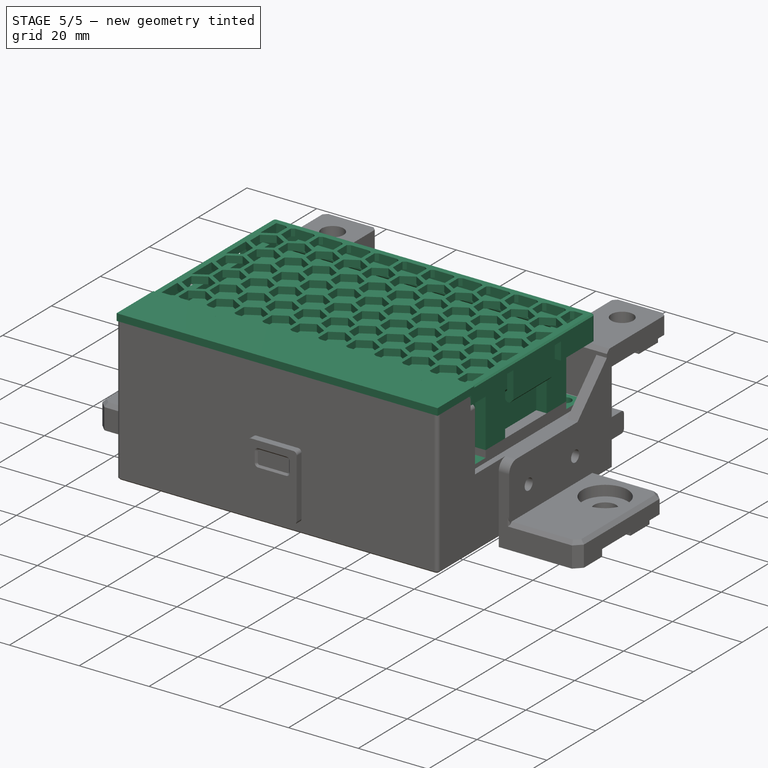
[diagram: stage 5 of 5 — iso view after this stage's code; geometry added in this stage tinted green]
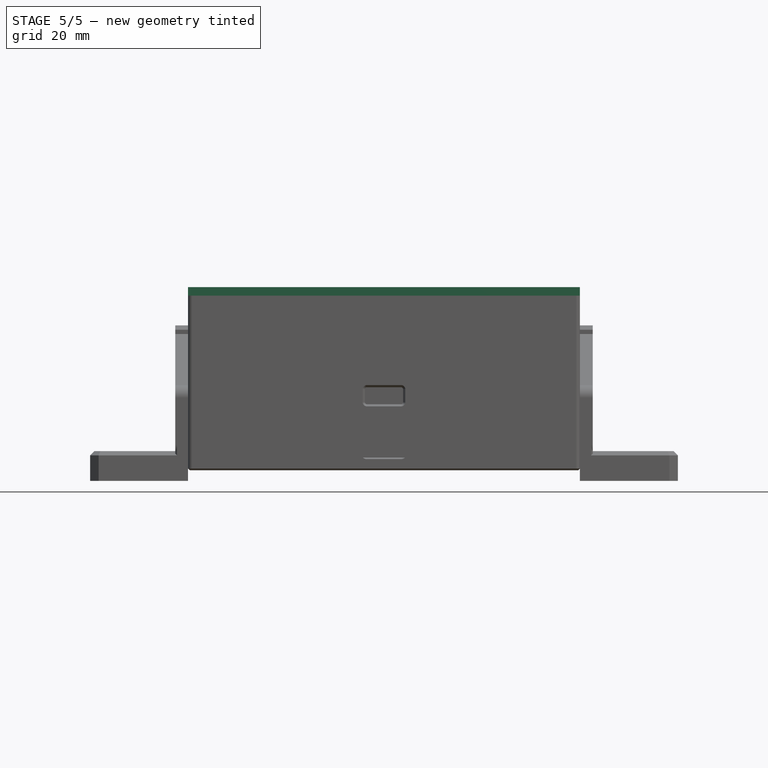
[diagram: stage 5 of 5 — front view after this stage's code; geometry added in this stage tinted green]
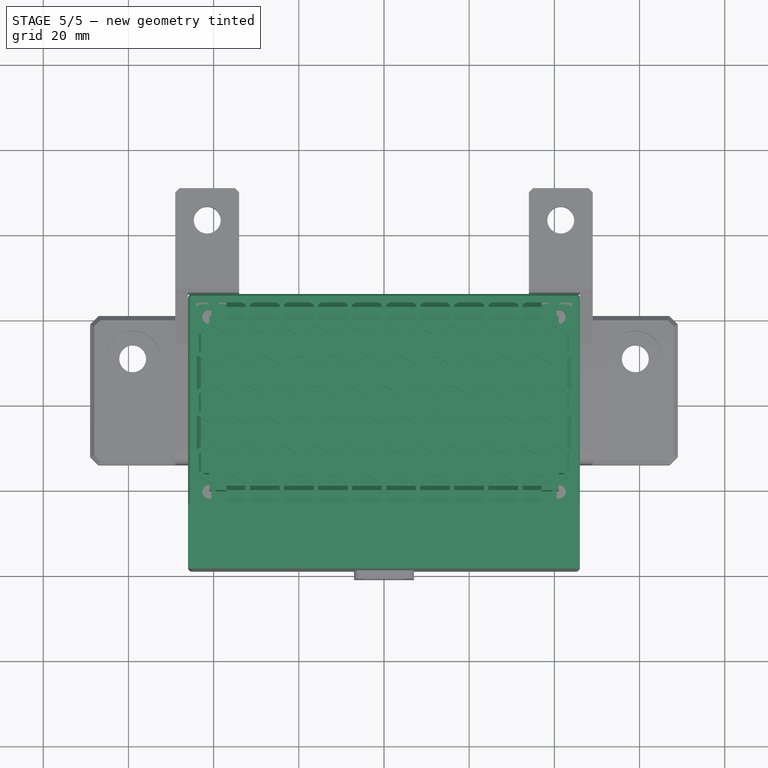
[diagram: stage 5 of 5 — top view after this stage's code; geometry added in this stage tinted green]
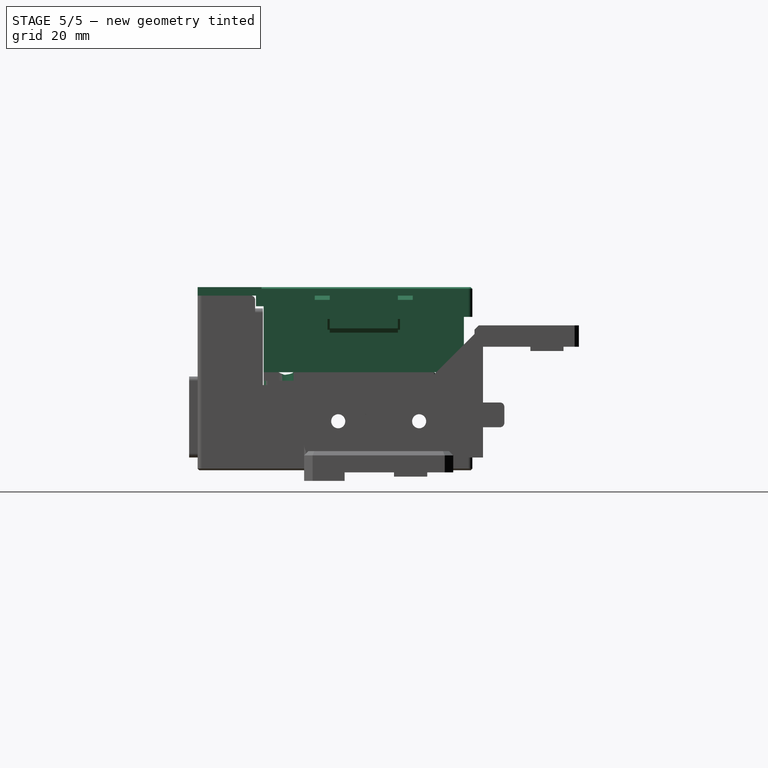
[diagram: stage 5 of 5 — right view after this stage's code; geometry added in this stage tinted green]
FEATURE [Part::Cylinder] Cylinder
  Angle = 360
  AttacherType = Attacher::AttachEngine3D
  Height = 3
  Placement = pos=(16,16,0) rot=(0,0,1;0rad)
  Radius = 1.65
FEATURE [Part::Cylinder] Cylinder001
  Angle = 360
  AttacherType = Attacher::AttachEngine3D
  Height = 3
  Placement = pos=(-16,16,0) rot=(0,0,1;0rad)
  Radius = 1.65
FEATURE [Part::Feature] Fusion001001
  Placement = pos=(0,0,3) rot=(0,0,1;0rad)
  shape: bbox 38 x 38 x 3 mm, 12 faces, 4 solids (baked)
FEATURE [Part::MultiFuse] Fusion001003
  Shapes = -> [Cylinder003,Cylinder,Cylinder001,Cylinder002]
FEATURE [Part::Cut] Cut003
  Base = -> Fusion001007
  Tool = -> Fusion001003
FEATURE [Part::Fillet] Fillet001
  Base = -> Cut003
  Edges = 4 edges r=1: [Edge2,Edge8,Edge25,Edge49]
FEATURE [Part::Box] Box031  label="Cube031"
  AttacherType = Attacher::AttachEngine3D
  Height = 5
  Length = 92
  Placement = pos=(-46,23.7,36) rot=(0,0,1;0rad)
  Width = 1.8
FEATURE [Part::Box] Box032  label="Cube032"
  AttacherType = Attacher::AttachEngine3D
  Height = 2.5
  Length = 92
  Placement = pos=(-46,-25.3,38.5) rot=(0,0,1;0rad)
  Width = 1.4
FEATURE [Part::Box] Box033  label="Cube033"
  AttacherType = Attacher::AttachEngine3D
  Height = 5
  Length = 1.8
  Placement = pos=(-46,11.5,36) rot=(0,0,1;0rad)
  Width = 14
FEATURE [Part::Box] Box034  label="Cube034"
  AttacherType = Attacher::AttachEngine3D
  Height = 5
  Length = 1.8
  Placement = pos=(44.2,11.5,36) rot=(0,0,1;0rad)
  Width = 14
FEATURE [Part::Box] Box035  label="Cube035"
  AttacherType = Attacher::AttachEngine3D
  Height = 2.5
  Length = 1.8
  Placement = pos=(-46,-25.3,38.5) rot=(0,0,1;0rad)
  Width = 13.8
FEATURE [Part::Box] Box036  label="Cube036"
  AttacherType = Attacher::AttachEngine3D
  Height = 2.5
  Length = 1.8
  Placement = pos=(44.2,-25.3,38.5) rot=(0,0,1;0rad)
  Width = 13.8
FEATURE [Part::Box] Box037  label="Cube037"
  AttacherType = Attacher::AttachEngine3D
  Height = 7
  Length = 1.8
  Placement = pos=(-46,-8,34) rot=(0,0,1;0rad)
  Width = 16
FEATURE [Part::Box] Box038  label="Cube038"
  AttacherType = Attacher::AttachEngine3D
  Height = 7
  Length = 1.8
  Placement = pos=(44.2,-8,34) rot=(0,0,1;0rad)
  Width = 16
FEATURE [Part::Box] Box039  label="Cube039"
  AttacherType = Attacher::AttachEngine3D
  Height = 3
  Length = 2.8
  Placement = pos=(-46,-8,31) rot=(0,0,1;0rad)
  Width = 16
FEATURE [Part::Box] Box040  label="Cube040"
  AttacherType = Attacher::AttachEngine3D
  Height = 3
  Length = 2.8
  Placement = pos=(43.2,-8,31) rot=(0,0,1;0rad)
  Width = 16
FEATURE [Part::Chamfer] Chamfer005
  Base = -> Box039
  Edges = 2 edges r=1: [Edge6,Edge8]
  Placement = pos=(0,0,1.3) rot=(0,0,1;0rad)
FEATURE [Part::Chamfer] Chamfer006
  Base = -> Box040
  Edges = 2 edges r=1: [Edge2,Edge4]
  Placement = pos=(0,0,1.3) rot=(0,0,1;0rad)
FEATURE [Part::MultiFuse] Fusion001021003
  Shapes = -> [Chamfer006,Chamfer005,Box038,Box037]
FEATURE [Part::Chamfer] Chamfer007
  Base = -> Fusion001021003
  Edges = 2 edges r=1: [Edge22,Edge57]
FEATURE [Part::Box] Box041  label="Cube041"
  AttacherType = Attacher::AttachEngine3D
  Height = 2
  Length = 92
  Placement = pos=(-46,-24,41) rot=(0,0,1;0rad)
  Width = 49.5
FEATURE [Part::Feature] Body002001  label="hex"
  Placement = pos=(0,0,36) rot=(0,0,1;0rad)
  shape: bbox 6.928 x 8 x 10 mm, 8 faces (baked)
FEATURE [Part::Feature] Body002002  label="hex001"
  Placement = pos=(8,0,36) rot=(0,0,1;0rad)
  shape: bbox 6.928 x 8 x 10 mm, 8 faces (baked)
FEATURE [Part::Feature] Body002003  label="hex002"
  Placement = pos=(16,0,36) rot=(0,0,1;0rad)
  shape: bbox 6.928 x 8 x 10 mm, 8 faces (baked)
FEATURE [Part::Feature] Body002004  label="hex003"
  Placement = pos=(24,0,36) rot=(0,0,1;0rad)
  shape: bbox 6.928 x 8 x 10 mm, 8 faces (baked)
FEATURE [Part::Feature] Body002005  label="hex004"
  Placement = pos=(32,0,36) rot=(0,0,1;0rad)
  shape: bbox 6.928 x 8 x 10 mm, 8 faces (baked)
FEATURE [Part::Feature] Body002006  label="hex005"
  Placement = pos=(40,0,36) rot=(0,0,1;0rad)
  shape: bbox 6.928 x 8 x 10 mm, 8 faces (baked)
FEATURE [Part::Feature] Body002007  label="hex006"
  Placement = pos=(-8,0,36) rot=(0,0,1;0rad)
  shape: bbox 6.928 x 8 x 10 mm, 8 faces (baked)
FEATURE [Part::Feature] Body002008  label="hex007"
  Placement = pos=(-16,0,36) rot=(0,0,1;0rad)
  shape: bbox 6.928 x 8 x 10 mm, 8 faces (baked)
FEATURE [Part::Feature] Body002009  label="hex008"
  Placement = pos=(-24,0,36) rot=(0,0,1;0rad)
  shape: bbox 6.928 x 8 x 10 mm, 8 faces (baked)
FEATURE [Part::Feature] Body002010  label="hex009"
  Placement = pos=(-32,0,36) rot=(0,0,1;0rad)
  shape: bbox 6.928 x 8 x 10 mm, 8 faces (baked)
FEATURE [Part::Feature] Body002011  label="hex010"
  Placement = pos=(-40,0,36) rot=(0,0,1;0rad)
  shape: bbox 6.928 x 8 x 10 mm, 8 faces (baked)
FEATURE [Part::Feature] Body002012  label="hex011"
  Placement = pos=(-48,0,36) rot=(0,0,1;0rad)
  shape: bbox 6.928 x 8 x 10 mm, 8 faces (baked)
FEATURE [Part::Feature] Body002013  label="hex012"
  Placement = pos=(48,0,36) rot=(0,0,1;0rad)
  shape: bbox 6.928 x 8 x 10 mm, 8 faces (baked)
FEATURE [Part::MultiFuse] Fusion001021004
  Shapes = -> [Body002013,Body002012,Body002011,Body002009,Body002010,Body002008,Body002007,Body002006,Body002005,Body002004,Body002003,Body002002,Body002001]
FEATURE [Part::Feature] Fusion001021004001
  Placement = pos=(4,7,0) rot=(0,0,1;0rad)
  shape: bbox 102.9 x 8 x 10 mm, 104 faces, 13 solids (baked)
FEATURE [Part::Feature] Fusion001021004002
  Placement = pos=(4,-7,0) rot=(0,0,1;0rad)
  shape: bbox 102.9 x 8 x 10 mm, 104 faces, 13 solids (baked)
FEATURE [Part::Feature] Fusion001021004003
  Placement = pos=(4,-21,0) rot=(0,0,1;0rad)
  shape: bbox 102.9 x 8 x 10 mm, 104 faces, 13 solids (baked)
FEATURE [Part::Feature] Fusion001021004004
  Placement = pos=(4,21,0) rot=(0,0,1;0rad)
  shape: bbox 102.9 x 8 x 10 mm, 104 faces, 13 solids (baked)
FEATURE [Part::Feature] Fusion001021004005
  Placement = pos=(0,14,0) rot=(0,0,1;0rad)
  shape: bbox 102.9 x 8 x 10 mm, 104 faces, 13 solids (baked)
FEATURE [Part::Feature] Fusion001021004006
  Placement = pos=(0,-14,0) rot=(0,0,1;0rad)
  shape: bbox 102.9 x 8 x 10 mm, 104 faces, 13 solids (baked)
FEATURE [Part::MultiFuse] Fusion001021004007
  Shapes = -> [Fusion001021004006,Fusion001021004005,Fusion001021004004,Fusion001021004003,Fusion001021004002,Fusion001021004001,Fusion001021004]
FEATURE [Part::Box] Box042  label="Cube042"
  AttacherType = Attacher::AttachEngine3D
  Height = 2
  Length = 88
  Placement = pos=(-44,-23.5,41) rot=(0,0,1;0rad)
  Width = 47
FEATURE [Part::Box] Box043  label="Cube043"
  AttacherType = Attacher::AttachEngine3D
  Height = 2
  Length = 92
  Placement = pos=(-46,-39,41) rot=(0,0,1;0rad)
  Width = 15
FEATURE [Part::MultiCommon] Common
  Shapes = -> [Box042,Fusion001021004007]
FEATURE [Part::Cut] Cut009
  Base = -> Box041
  Tool = -> Common
FEATURE [Part::Box] Box044  label="hepa"
  AttacherType = Attacher::AttachEngine3D
  Height = 16
  Length = 82
  Placement = pos=(-41,-20.5,23) rot=(0,0,1;0rad)
  Width = 41
FEATURE [Part::Box] Box045  label="carbon"
  AttacherType = Attacher::AttachEngine3D
  Height = 35
  Length = 84
  Placement = pos=(-42,-36,5) rot=(0,0,1;0rad)
  Width = 10
FEATURE [Part::Feature] Fillet005015001
  shape: bbox 4 x 10.5 x 10 mm, 10 faces (baked)
FEATURE [Part::Feature] Fillet005015002
  Placement = pos=(-6,0,0) rot=(0,0,1;0rad)
  shape: bbox 4 x 10.5 x 10 mm, 10 faces (baked)
FEATURE [Part::Feature] Fillet005015003
  Placement = pos=(-12,0,0) rot=(0,0,1;0rad)
  shape: bbox 4 x 10.5 x 10 mm, 10 faces (baked)
FEATURE [Part::Feature] Fillet005015004
  Placement = pos=(-18,0,0) rot=(0,0,1;0rad)
  shape: bbox 4 x 10.5 x 10 mm, 10 faces (baked)
FEATURE [Part::Feature] Fillet005015005
  Placement = pos=(-24,0,0) rot=(0,0,1;0rad)
  shape: bbox 4 x 10.5 x 10 mm, 10 faces (baked)
FEATURE [Part::Feature] Fillet005015006
  Placement = pos=(-30,0,0) rot=(0,0,1;0rad)
  shape: bbox 4 x 10.5 x 10 mm, 10 faces (baked)
FEATURE [Part::Feature] Fillet005015007
  Placement = pos=(-36,0,0) rot=(0,0,1;0rad)
  shape: bbox 4 x 10.5 x 10 mm, 10 faces (baked)
FEATURE [Part::Feature] Fillet005015008
  Placement = pos=(-42,0,0) rot=(0,0,1;0rad)
  shape: bbox 4 x 10.5 x 10 mm, 10 faces (baked)
FEATURE [Part::Feature] Fillet005015009
  Placement = pos=(6,0,0) rot=(0,0,1;0rad)
  shape: bbox 4 x 10.5 x 10 mm, 10 faces (baked)
FEATURE [Part::Feature] Fillet005015010
  Placement = pos=(12,0,0) rot=(0,0,1;0rad)
  shape: bbox 4 x 10.5 x 10 mm, 10 faces (baked)
FEATURE [Part::Feature] Fillet005015011
  Placement = pos=(18,0,0) rot=(0,0,1;0rad)
  shape: bbox 4 x 10.5 x 10 mm, 10 faces (baked)
FEATURE [Part::Feature] Fillet005015012
  Placement = pos=(24,0,0) rot=(0,0,1;0rad)
  shape: bbox 4 x 10.5 x 10 mm, 10 faces (baked)
FEATURE [Part::Feature] Fillet005015013
  Placement = pos=(30,0,0) rot=(0,0,1;0rad)
  shape: bbox 4 x 10.5 x 10 mm, 10 faces (baked)
FEATURE [Part::Feature] Fillet005015014
  Placement = pos=(36,0,0) rot=(0,0,1;0rad)
  shape: bbox 4 x 10.5 x 10 mm, 10 faces (baked)
FEATURE [Part::Feature] Fillet005015015
  Placement = pos=(42,0,0) rot=(0,0,1;0rad)
  shape: bbox 4 x 10.5 x 10 mm, 10 faces (baked)
FEATURE [Part::MultiFuse] Fusion001021004009010
  Shapes = -> [Fillet005015015,Fillet005015014,Fillet005015013,Fillet005015012,Fillet005015011,Fillet005015010,Fillet005015009,Fillet005015008,Fillet005015007,Fillet005015006,Fillet005015005,Fillet005015004,Fillet005015003,Fillet005015002,Fillet005015001]
FEATURE [Part::Box] Box046  label="Cube044"
  AttacherType = Attacher::AttachEngine3D
  Height = 2
  Length = 92
  Placement = pos=(-46,-39,41) rot=(0,0,1;0rad)
  Width = 15
FEATURE [Part::Cut] Cut013
  Base = -> Box046
  Tool = -> Fusion001021004009010
FEATURE [Part::Feature] Chamfer010001
  Placement = pos=(-15,0,0) rot=(0,0,1;0rad)
  shape: bbox 4 x 3 x 38 mm, 13 faces (baked)
FEATURE [Part::Feature] Chamfer010002
  Placement = pos=(15,0,0) rot=(0,0,1;0rad)
  shape: bbox 4 x 3 x 38 mm, 13 faces (baked)
FEATURE [Part::Feature] Chamfer010003
  Placement = pos=(30,0,0) rot=(0,0,1;0rad)
  shape: bbox 4 x 3 x 38 mm, 13 faces (baked)
FEATURE [Part::Feature] Chamfer010004
  Placement = pos=(-30,0,0) rot=(0,0,1;0rad)
  shape: bbox 4 x 3 x 38 mm, 13 faces (baked)
FEATURE [Part::Box] Box048  label="Cube046"
  AttacherType = Attacher::AttachEngine3D
  Height = 2
  Length = 84
  Placement = pos=(-42,-36.8,39) rot=(0,0,1;0rad)
  Width = 0.8
FEATURE [Part::MultiFuse] Fusion001021004009013
  Shapes = -> [Box048,Cut013]
FEATURE [Part::Fillet] Fillet005015016
  Base = -> Fusion001021004009013
  Edges = 2 edges r=1: [Edge4,Edge151]
FEATURE [Part::MultiFuse] Fusion001021004009014
  Shapes = -> [Box031,Box032,Box033,Box034,Box035,Box036,Chamfer007]
FEATURE [Part::MultiFuse] Fusion001021004009015
  Shapes = -> [Fusion001021004009014,Cut009,Fillet005015016]
FEATURE [Part::Refine] Fusion001021004009015001
  Source = -> Fusion001021004009015
FEATURE [Part::Fillet] Fillet005015017
  Base = -> Fusion001021004009015001
  Edges = 4 edges r=1: [Edge1567,Edge1569,Edge1571,Edge1939]
FEATURE [Part::Chamfer] Chamfer010005  label="fin"
  Base = -> Fillet005015017
  Edges = 8 edges r=0.4: [Edge13,Edge25,Edge28,Edge29,Edge30,Edge31,Edge32,Edge33]
FEATURE [Part::MultiFuse] Fusion001021004009015004
  Shapes = -> [Cut015,Fillet001]
FEATURE [Part::Cut] Cut016
  Base = -> Fusion001021004009015004
  Tool = -> Fusion001009
FEATURE [Part::Chamfer] Chamfer010006
  Base = -> Cut016
  Edges = 2 edges r=2.5: [Edge164,Edge236]
FEATURE [Part::Chamfer] Chamfer010007  label="duct-hepa-mounter"
  Base = -> Chamfer010006
  Edges = 8 edges r=0.4: [Edge43,Edge65,Edge66,Edge67,Edge68,Edge69,Edge70,Edge71]
  Placement = pos=(0,0,18) rot=(0,0,1;0rad)
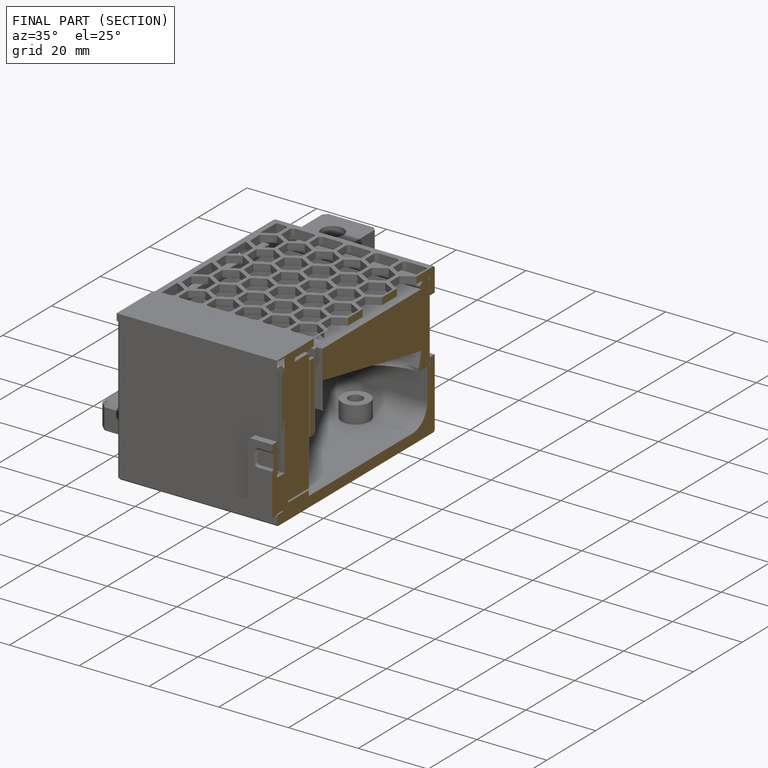
[diagram: finished part — half-section view (interior)]
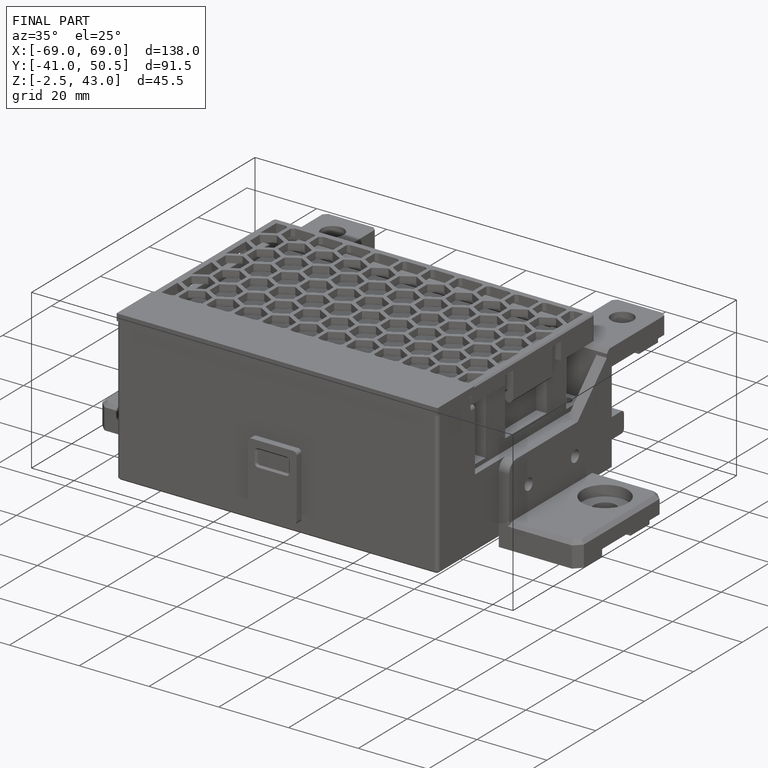
[diagram: finished part — iso view with bounding-box wireframe]
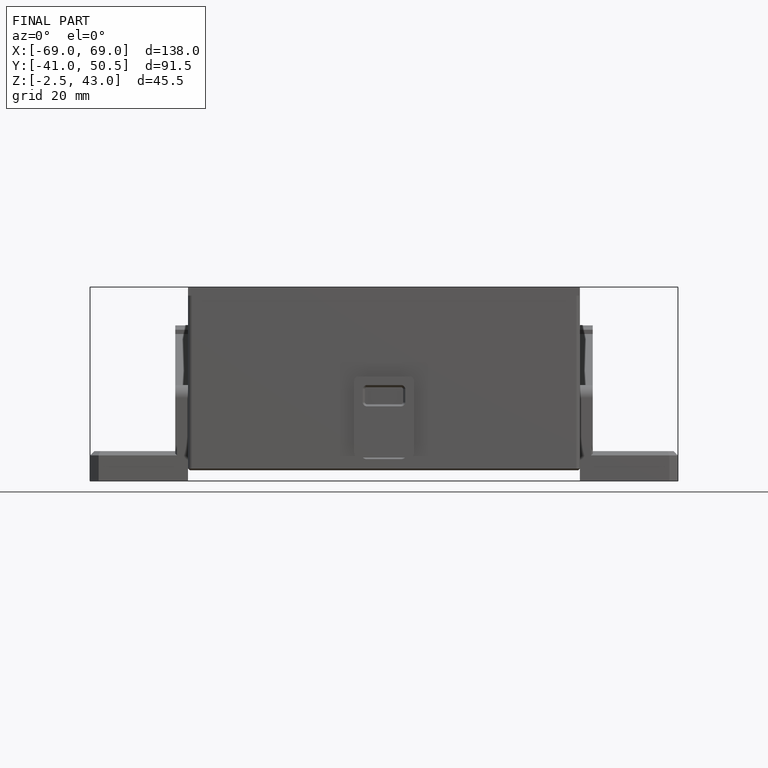
[diagram: finished part — front view with bounding-box wireframe]
